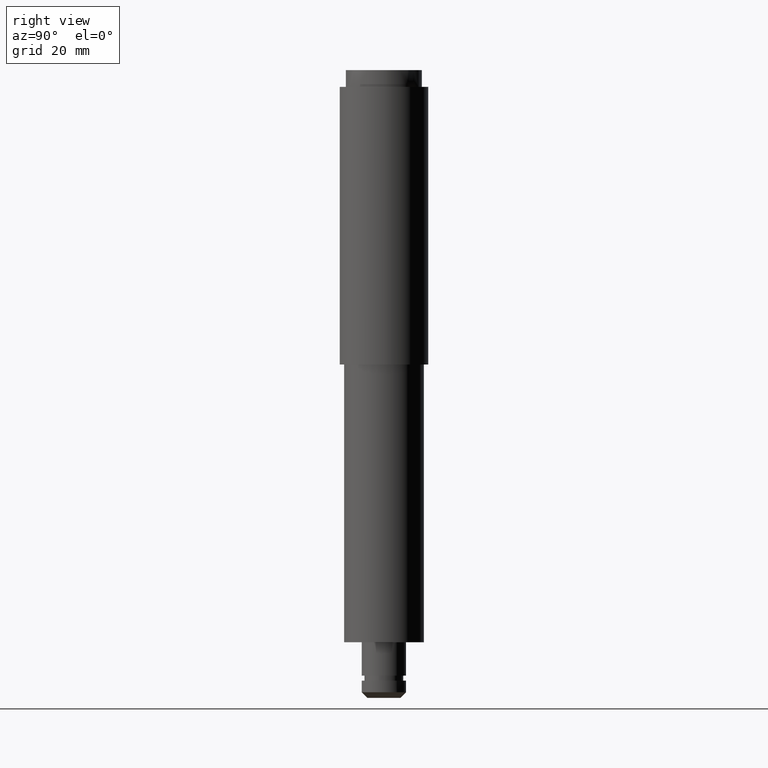
[diagram: clean part render]
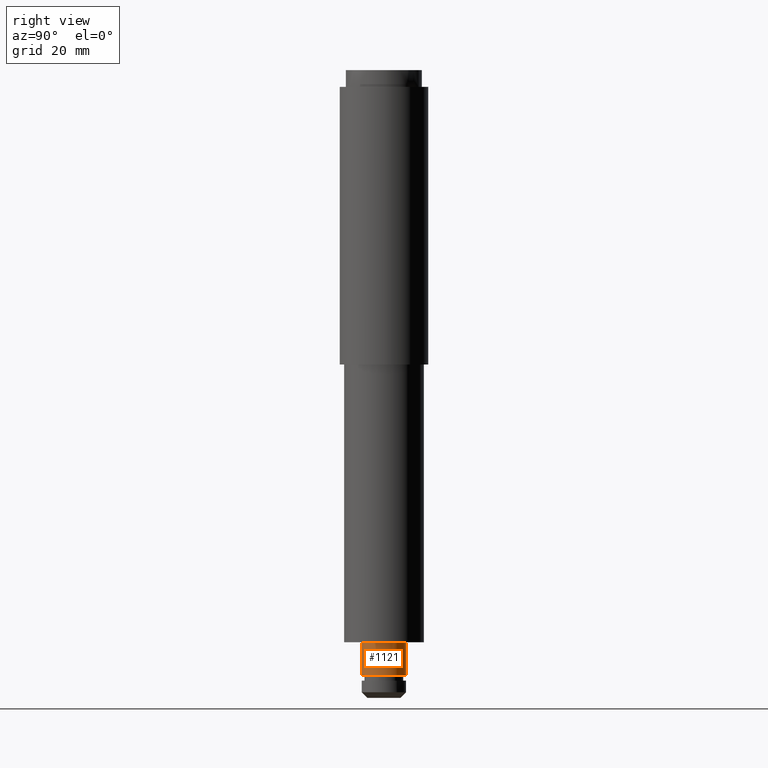
[diagram: same view with one face highlighted and labeled with its STEP entity id]
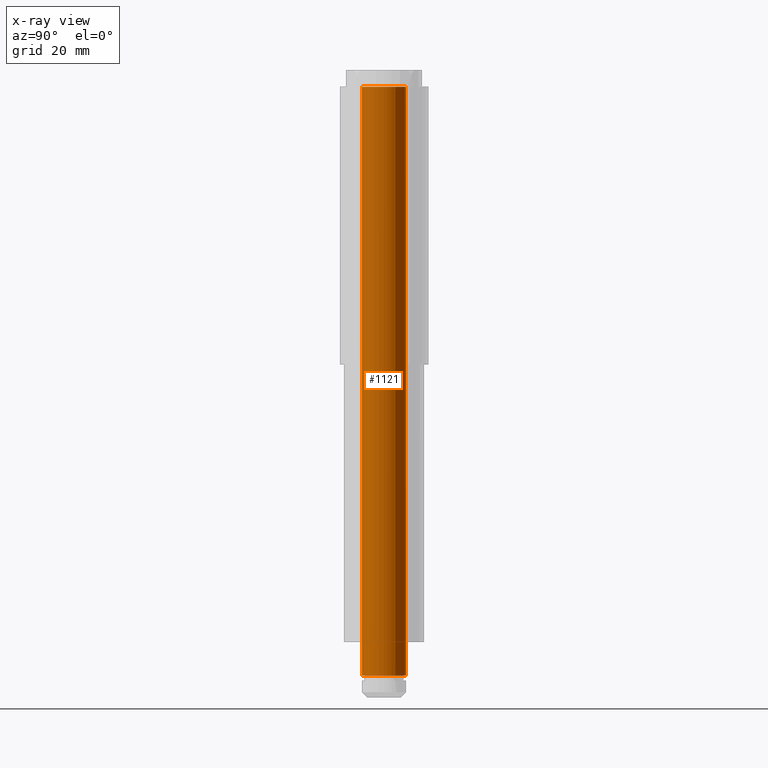
[diagram: x-ray of the same camera — body ghosted, the highlighted face saturated]
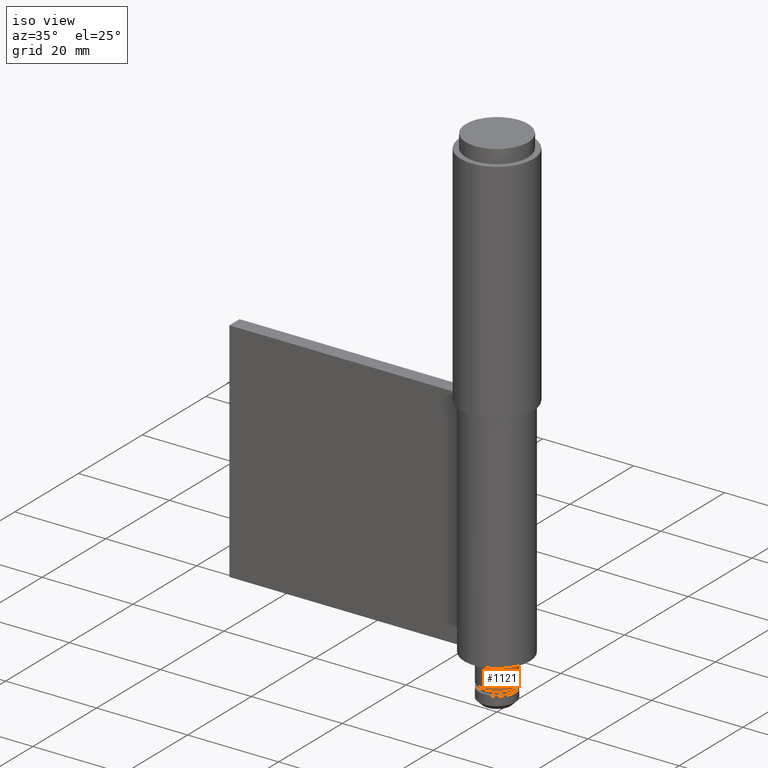
[diagram: same view with one face highlighted and labeled with its STEP entity id]
A machine part, right view. The second image highlights one B-rep face of the part: STEP entity #1121.
The next image is the same camera in x-ray: the body ghosted, the highlighted face saturated — about 0% of this face is hidden behind the body in this view.
A second angle (iso view) of the same face is appended — the face is thin or edge-on in the first view.
In plain terms, the highlighted face is a freeform B-spline surface patch.
Its self-contained STEP definition (entity closure, byte-faithful):
#1019=CARTESIAN_POINT('',(-0.472136938627125,3.972038105455907,112.650000000000080));
#1020=CARTESIAN_POINT('',(-0.358458914551966,3.985550461795668,112.650000000000020));
#1021=CARTESIAN_POINT('',(-0.244194158139447,3.992539193688715,112.650000000000010));
#1022=CARTESIAN_POINT('',(3.748345035549266,4.236733351828219,112.650000000000020));
#1023=CARTESIAN_POINT('',(3.992539193688772,0.244194158139504,112.650000000000010));
#1024=CARTESIAN_POINT('',(4.236733351828276,-3.748345035549210,112.650000000000020));
#1025=CARTESIAN_POINT('',(0.244194158139561,-3.992539193688715,112.650000000000010));
#1026=CARTESIAN_POINT('',(-0.472136938627125,3.972038105455907,1.283749999999998));
#1027=CARTESIAN_POINT('',(-0.358458914551966,3.985550461795668,1.283749999999998));
#1028=CARTESIAN_POINT('',(-0.244194158139447,3.992539193688715,1.283749999999998));
#1029=CARTESIAN_POINT('',(3.748345035549266,4.236733351828219,1.283749999999998));
#1030=CARTESIAN_POINT('',(3.992539193688772,0.244194158139504,1.283749999999998));
#1031=CARTESIAN_POINT('',(4.236733351828276,-3.748345035549210,1.283749999999998));
#1032=CARTESIAN_POINT('',(0.244194158139561,-3.992539193688715,1.283749999999998));
#1040=(BOUNDED_SURFACE()B_SPLINE_SURFACE(2,1,((#1019,#1026),(#1020,#1027),(#1021,#1028),(#1022,#1029),(#1023,#1030),(#1024,#1031),(#1025,#1032)),.UNSPECIFIED.,.F.,.F.,.U.)B_SPLINE_SURFACE_WITH_KNOTS((3,2,2,3),(2,2),(0.0,0.265096679918864,6.892513677890455,13.519930675862049),(0.0,111.366249999999990),.UNSPECIFIED.)GEOMETRIC_REPRESENTATION_ITEM()RATIONAL_B_SPLINE_SURFACE(((0.977505800795127,0.977505800795127),(0.988284271247462,0.988284271247462),(1.0,1.0),(0.707106781186548,0.707106781186548),(1.0,1.0),(0.707106781186548,0.707106781186548),(1.0,1.0)))REPRESENTATION_ITEM('')SURFACE());
#1041=CARTESIAN_POINT('',(-0.472136938646832,3.972038105454123,4.000000000000006));
#1042=VERTEX_POINT('',#1041);
#1043=CARTESIAN_POINT('',(4.000000000002418,0.0,4.0));
#1044=VERTEX_POINT('',#1043);
#1045=CARTESIAN_POINT('',(-0.472136938646832,3.972038105454124,4.000000000000006));
#1046=CARTESIAN_POINT('',(-0.236896478627572,4.000000000002361,4.000000000000001));
#1047=CARTESIAN_POINT('',(5.684342E-014,4.000000000002360,4.0));
#1048=CARTESIAN_POINT('',(4.000000000002418,4.000000000002360,4.000000000000000));
#1049=CARTESIAN_POINT('',(4.000000000002418,0.0,4.0));
#1057=(BOUNDED_CURVE()B_SPLINE_CURVE(2,(#1045,#1046,#1047,#1048,#1049),.UNSPECIFIED.,.F.,.U.)B_SPLINE_CURVE_WITH_KNOTS((3,2,3),(0.229562473513973,0.250000000000000,0.500000000000000),.UNSPECIFIED.)CURVE()GEOMETRIC_REPRESENTATION_ITEM()RATIONAL_B_SPLINE_CURVE((0.956026754184610,0.976055948331689,1.0,0.707106781186548,1.0))REPRESENTATION_ITEM(''));
#1058=EDGE_CURVE('',#1042,#1044,#1057,.T.);
#1059=ORIENTED_EDGE('',*,*,#1058,.F.);
#1060=CARTESIAN_POINT('',(-0.472136938646701,3.972038105453024,110.0));
#1061=VERTEX_POINT('',#1060);
#1062=CARTESIAN_POINT('',(-0.472136938646701,3.972038105453024,110.0));
#1063=CARTESIAN_POINT('',(-0.472136938646832,3.972038105454123,4.000000000000006));
#1064=QUASI_UNIFORM_CURVE('',1,(#1062,#1063),.UNSPECIFIED.,.F.,.U.);
#1065=EDGE_CURVE('',#1061,#1042,#1064,.T.);
#1066=ORIENTED_EDGE('',*,*,#1065,.F.);
#1067=CARTESIAN_POINT('',(4.000000000000203,0.0,110.0));
#1068=VERTEX_POINT('',#1067);
#1069=CARTESIAN_POINT('',(-0.472136938646701,3.972038105453024,110.000000000000040));
#1070=CARTESIAN_POINT('',(-0.236896478627442,4.000000000000145,110.0));
#1071=CARTESIAN_POINT('',(5.684342E-014,4.000000000000145,110.0));
#1072=CARTESIAN_POINT('',(4.000000000000202,4.000000000000145,110.0));
#1073=CARTESIAN_POINT('',(4.000000000000203,0.0,110.0));
#1081=(BOUNDED_CURVE()B_SPLINE_CURVE(2,(#1069,#1070,#1071,#1072,#1073),.UNSPECIFIED.,.F.,.U.)B_SPLINE_CURVE_WITH_KNOTS((3,2,3),(0.229562473513973,0.250000000000000,0.500000000000000),.UNSPECIFIED.)CURVE()GEOMETRIC_REPRESENTATION_ITEM()RATIONAL_B_SPLINE_CURVE((0.956026754184610,0.976055948331689,1.0,0.707106781186548,1.0))REPRESENTATION_ITEM(''));
#1082=EDGE_CURVE('',#1061,#1068,#1081,.T.);
#1083=ORIENTED_EDGE('',*,*,#1082,.T.);
#1084=CARTESIAN_POINT('',(0.244194158254022,-3.992539193681161,110.0));
#1085=VERTEX_POINT('',#1084);
#1086=CARTESIAN_POINT('',(4.000000000000203,0.0,110.0));
#1087=CARTESIAN_POINT('',(4.000000000000203,-3.762824267406717,110.0));
#1088=CARTESIAN_POINT('',(0.244194158254022,-3.992539193681161,109.999999999999970));
#1096=(BOUNDED_CURVE()B_SPLINE_CURVE(2,(#1086,#1087,#1088),.UNSPECIFIED.,.F.,.U.)B_SPLINE_CURVE_WITH_KNOTS((3,3),(0.500000000000000,0.739332962232073),.UNSPECIFIED.)CURVE()GEOMETRIC_REPRESENTATION_ITEM()RATIONAL_B_SPLINE_CURVE((1.0,0.719603993294759,0.976072041651994))REPRESENTATION_ITEM(''));
#1097=EDGE_CURVE('',#1068,#1085,#1096,.T.);
#1098=ORIENTED_EDGE('',*,*,#1097,.T.);
#1099=CARTESIAN_POINT('',(0.244194158254089,-3.992539193682267,3.999999999999994));
#1100=VERTEX_POINT('',#1099);
#1101=CARTESIAN_POINT('',(0.244194158254022,-3.992539193681161,110.0));
#1102=CARTESIAN_POINT('',(0.244194158254089,-3.992539193682267,3.999999999999994));
#1103=QUASI_UNIFORM_CURVE('',1,(#1101,#1102),.UNSPECIFIED.,.F.,.U.);
#1104=EDGE_CURVE('',#1085,#1100,#1103,.T.);
#1105=ORIENTED_EDGE('',*,*,#1104,.T.);
#1106=CARTESIAN_POINT('',(4.000000000002418,0.0,4.0));
#1107=CARTESIAN_POINT('',(4.000000000002418,-3.762824267408799,4.0));
#1108=CARTESIAN_POINT('',(0.244194158254089,-3.992539193682267,3.999999999999994));
#1116=(BOUNDED_CURVE()B_SPLINE_CURVE(2,(#1106,#1107,#1108),.UNSPECIFIED.,.F.,.U.)B_SPLINE_CURVE_WITH_KNOTS((3,3),(0.500000000000000,0.739332962232073),.UNSPECIFIED.)CURVE()GEOMETRIC_REPRESENTATION_ITEM()RATIONAL_B_SPLINE_CURVE((1.0,0.719603993294759,0.976072041651994))REPRESENTATION_ITEM(''));
#1117=EDGE_CURVE('',#1044,#1100,#1116,.T.);
#1118=ORIENTED_EDGE('',*,*,#1117,.F.);
#1119=EDGE_LOOP('',(#1059,#1066,#1083,#1098,#1105,#1118));
#1120=FACE_OUTER_BOUND('',#1119,.T.);
#1121=ADVANCED_FACE('',(#1120),#1040,.T.);